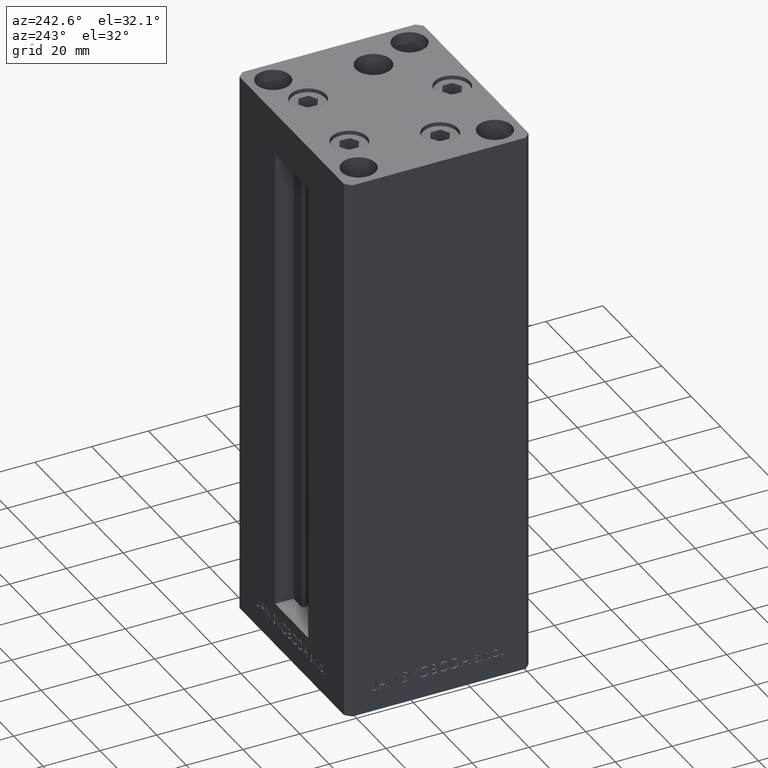
[diagram: clean part render]
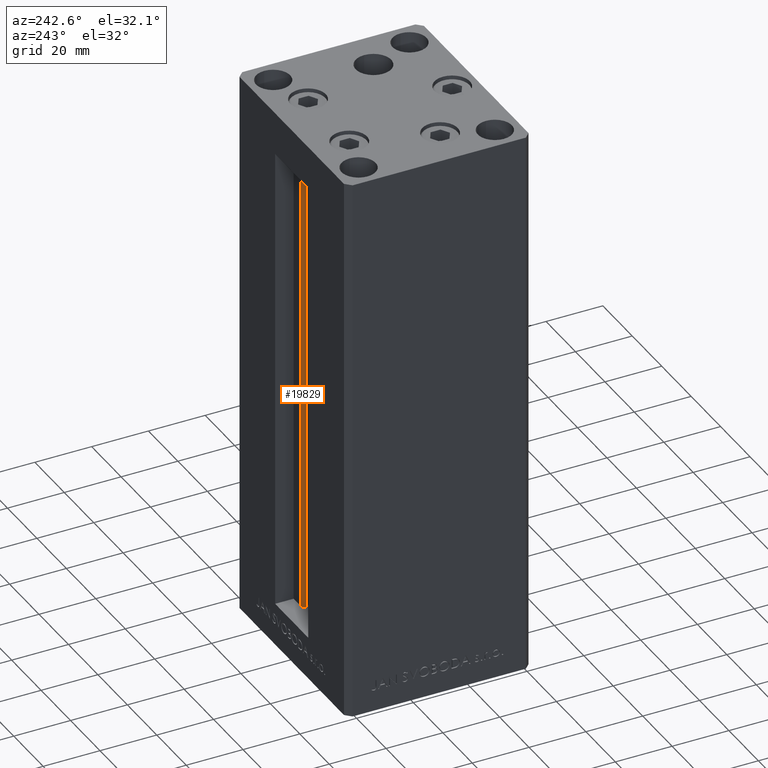
[diagram: same view with one face highlighted and labeled with its STEP entity id]
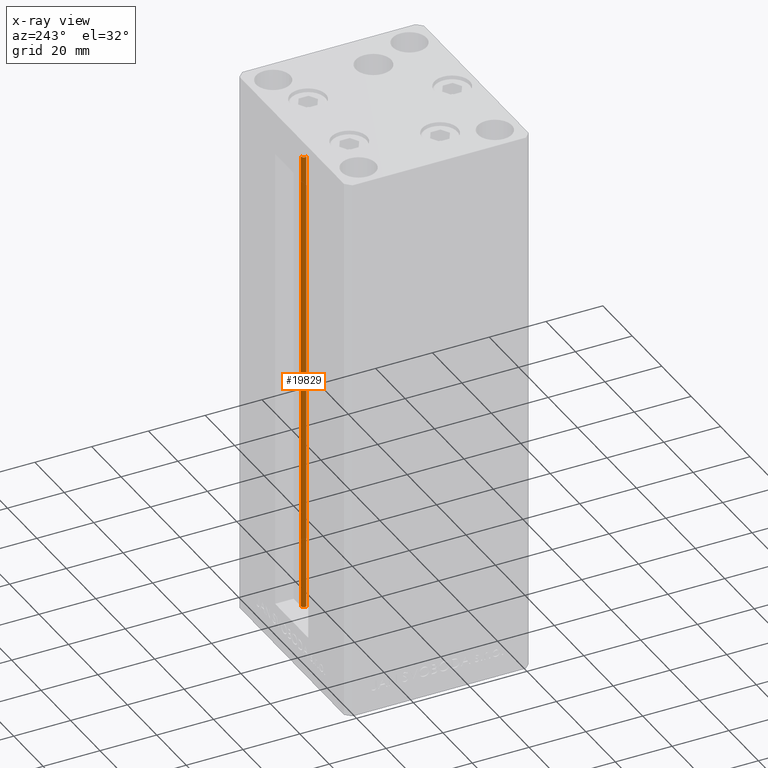
[diagram: x-ray of the same camera — body ghosted, the highlighted face saturated]
A machine part, auxiliary view. The second image highlights one B-rep face of the part: STEP entity #19829.
The next image is the same camera in x-ray: the body ghosted, the highlighted face saturated — about 0% of this face is hidden behind the body in this view.
In plain terms, the highlighted cylindrical surface (edge-blend (fillet) strip) has radius 0.9333 mm, axis along (0, 0, 1).
Its self-contained STEP definition (entity closure, byte-faithful):
#1541 = AXIS2_PLACEMENT_3D ( 'NONE', #7630, #22823, #41279 ) ;
#3490 = DIRECTION ( 'NONE',  ( 1.000000000000000000, 0.000000000000000000, 0.000000000000000000 ) ) ;
#7390 = FACE_OUTER_BOUND ( 'NONE', #33119, .T. ) ;
#7630 = CARTESIAN_POINT ( 'NONE',  ( 6.183333333334001480, 25.06666666666599141, 0.000000000000000000 ) ) ;
#9167 = ORIENTED_EDGE ( 'NONE', *, *, #38162, .T. ) ;
#9985 = EDGE_CURVE ( 'NONE', #23362, #43452, #10066, .T. ) ;
#10066 = LINE ( 'NONE', #31770, #49126 ) ;
#13671 = DIRECTION ( 'NONE',  ( -0.000000000000000000, -0.000000000000000000, 1.000000000000000000 ) ) ;
#13986 = CARTESIAN_POINT ( 'NONE',  ( 6.183333333334001480, 25.99999999999999289, 0.000000000000000000 ) ) ;
#14479 = DIRECTION ( 'NONE',  ( 0.000000000000000000, 0.000000000000000000, -1.000000000000000000 ) ) ;
#15350 = CYLINDRICAL_SURFACE ( 'NONE', #1541, 0.9333333333340008142 ) ;
#17525 = ORIENTED_EDGE ( 'NONE', *, *, #27276, .F. ) ;
#19006 = AXIS2_PLACEMENT_3D ( 'NONE', #26185, #14479, #29683 ) ;
#19071 = VERTEX_POINT ( 'NONE', #13986 ) ;
#19829 = ADVANCED_FACE ( 'NONE', ( #7390 ), #15350, .T. ) ;
#22197 = CARTESIAN_POINT ( 'NONE',  ( 6.183333333334001480, 25.06666666666599141, 0.000000000000000000 ) ) ;
#22823 = DIRECTION ( 'NONE',  ( -0.000000000000000000, -0.000000000000000000, 1.000000000000000000 ) ) ;
#23362 = VERTEX_POINT ( 'NONE', #42546 ) ;
#26185 = CARTESIAN_POINT ( 'NONE',  ( 6.183333333334001480, 25.06666666666599141, 166.0000000000000000 ) ) ;
#27276 = EDGE_CURVE ( 'NONE', #23362, #19071, #28878, .T. ) ;
#28878 = CIRCLE ( 'NONE', #32856, 0.9333333333340008142 ) ;
#29407 = CARTESIAN_POINT ( 'NONE',  ( 6.183333333334001480, 25.99999999999999289, 166.0000000000000000 ) ) ;
#29671 = DIRECTION ( 'NONE',  ( -0.000000000000000000, -0.000000000000000000, -1.000000000000000000 ) ) ;
#29683 = DIRECTION ( 'NONE',  ( 1.000000000000000000, 0.000000000000000000, 0.000000000000000000 ) ) ;
#30655 = CARTESIAN_POINT ( 'NONE',  ( 5.375042956467946276, 24.59999999999899245, 166.0000000000000000 ) ) ;
#31488 = ORIENTED_EDGE ( 'NONE', *, *, #35312, .F. ) ;
#31770 = CARTESIAN_POINT ( 'NONE',  ( 5.375042956467947164, 24.59999999999899245, 0.000000000000000000 ) ) ;
#32604 = LINE ( 'NONE', #47086, #37329 ) ;
#32856 = AXIS2_PLACEMENT_3D ( 'NONE', #22197, #29671, #3490 ) ;
#33119 = EDGE_LOOP ( 'NONE', ( #31488, #17525, #48814, #9167 ) ) ;
#35312 = EDGE_CURVE ( 'NONE', #19071, #42491, #32604, .T. ) ;
#35745 = DIRECTION ( 'NONE',  ( -0.000000000000000000, -0.000000000000000000, 1.000000000000000000 ) ) ;
#36531 = CIRCLE ( 'NONE', #19006, 0.9333333333340008142 ) ;
#37329 = VECTOR ( 'NONE', #13671, 1000.000000000000000 ) ;
#38162 = EDGE_CURVE ( 'NONE', #43452, #42491, #36531, .T. ) ;
#41279 = DIRECTION ( 'NONE',  ( 1.000000000000000000, 0.000000000000000000, 0.000000000000000000 ) ) ;
#42491 = VERTEX_POINT ( 'NONE', #29407 ) ;
#42546 = CARTESIAN_POINT ( 'NONE',  ( 5.375042956467947164, 24.59999999999899245, 0.000000000000000000 ) ) ;
#43452 = VERTEX_POINT ( 'NONE', #30655 ) ;
#47086 = CARTESIAN_POINT ( 'NONE',  ( 6.183333333334001480, 25.99999999999999289, 0.000000000000000000 ) ) ;
#48814 = ORIENTED_EDGE ( 'NONE', *, *, #9985, .T. ) ;
#49126 = VECTOR ( 'NONE', #35745, 1000.000000000000000 ) ;